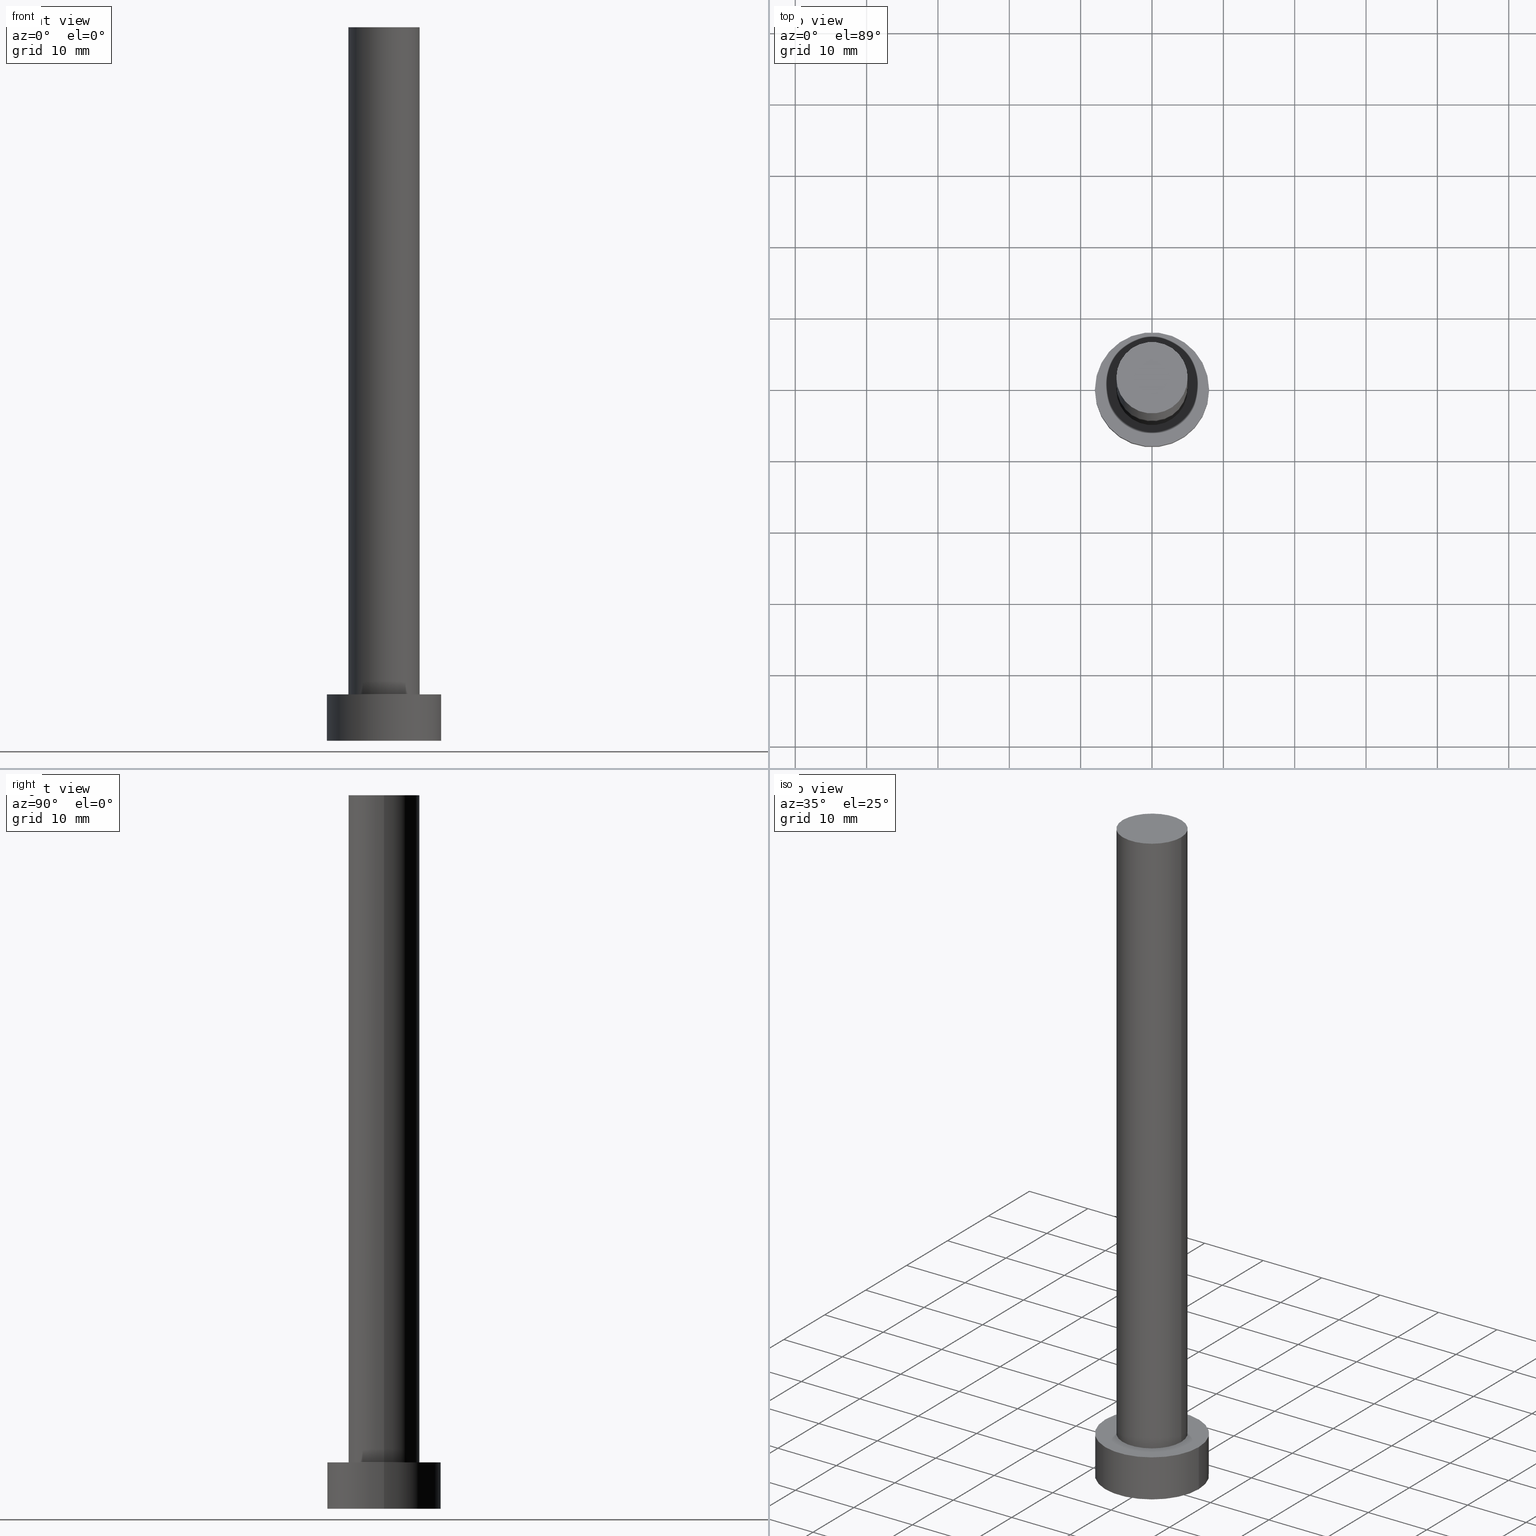
[diagram: canonical four-view strip — front | top / right | iso, engineering-drawing reading convention]
A machine part, canonical four-view strip (front | top / right | iso — engineering-drawing reading convention). The complete STEP part file that produces these views, byte-faithful:
ISO-10303-21;
HEADER;
FILE_DESCRIPTION (( 'STEP AP203' ),
    '1' );
FILE_NAME ('3461.STEP',
    '2023-02-13T13:10:58',
    ( '' ),
    ( '' ),
    'SwSTEP 2.0',
    'SolidWorks 2019',
    '' );
FILE_SCHEMA (( 'CONFIG_CONTROL_DESIGN' ));
ENDSEC;

DATA;
#1 = CYLINDRICAL_SURFACE ( 'NONE', #130, 5.000000000000000888 ) ;
#2 = ORIENTED_EDGE ( 'NONE', *, *, #161, .F. ) ;
#3 = ORIENTED_EDGE ( 'NONE', *, *, #57, .T. ) ;
#4 = DATE_TIME_ROLE ( 'creation_date' ) ;
#5 = EDGE_CURVE ( 'NONE', #228, #62, #239, .T. ) ;
#6 = CC_DESIGN_APPROVAL ( #127, ( #235 ) ) ;
#7 = CARTESIAN_POINT ( 'NONE',  ( 0.000000000000000000, 0.000000000000000000, 0.000000000000000000 ) ) ;
#8 = FACE_OUTER_BOUND ( 'NONE', #205, .T. ) ;
#9 = EDGE_LOOP ( 'NONE', ( #76, #58 ) ) ;
#10 = DIRECTION ( 'NONE',  ( 0.000000000000000000, 0.000000000000000000, 1.000000000000000000 ) ) ;
#11 = EDGE_LOOP ( 'NONE', ( #83, #191, #176, #233 ) ) ;
#12 = CC_DESIGN_SECURITY_CLASSIFICATION ( #235, ( #216 ) ) ;
#13 = APPROVAL_ROLE ( '' ) ;
#14 = APPROVAL ( #43, 'NEUR�EN�' ) ;
#15 = AXIS2_PLACEMENT_3D ( 'NONE', #16, #252, #188 ) ;
#16 = CARTESIAN_POINT ( 'NONE',  ( 0.000000000000000000, 0.000000000000000000, 6.500000000000000000 ) ) ;
#17 = AXIS2_PLACEMENT_3D ( 'NONE', #220, #198, #129 ) ;
#18 = DIRECTION ( 'NONE',  ( 1.000000000000000000, 0.000000000000000000, 0.000000000000000000 ) ) ;
#19 = ADVANCED_FACE ( 'NONE', ( #133 ), #136, .T. ) ;
#20 = CALENDAR_DATE ( 2023, 13, 2 ) ;
#21 = AXIS2_PLACEMENT_3D ( 'NONE', #107, #26, #194 ) ;
#22 = DIRECTION ( 'NONE',  ( 0.000000000000000000, 0.000000000000000000, 1.000000000000000000 ) ) ;
#23 = AXIS2_PLACEMENT_3D ( 'NONE', #71, #250, #202 ) ;
#24 = COORDINATED_UNIVERSAL_TIME_OFFSET ( 1, 0, .AHEAD. ) ;
#25 = ORIENTED_EDGE ( 'NONE', *, *, #105, .F. ) ;
#26 = DIRECTION ( 'NONE',  ( 0.000000000000000000, 0.000000000000000000, 1.000000000000000000 ) ) ;
#27 = CARTESIAN_POINT ( 'NONE',  ( -5.000000000000000888, 0.000000000000000000, 100.0000000000000000 ) ) ;
#28 = ORIENTED_EDGE ( 'NONE', *, *, #253, .T. ) ;
#29 = VECTOR ( 'NONE', #99, 1000.000000000000000 ) ;
#30 = PERSON_AND_ORGANIZATION ( #142, #116 ) ;
#31 = LOCAL_TIME ( 14, 10, 58.00000000000000000, #92 ) ;
#32 = ORIENTED_EDGE ( 'NONE', *, *, #236, .T. ) ;
#33 = CARTESIAN_POINT ( 'NONE',  ( 0.000000000000000000, 0.000000000000000000, 100.0000000000000000 ) ) ;
#34 = CARTESIAN_POINT ( 'NONE',  ( 0.000000000000000000, 0.000000000000000000, 6.500000000000000000 ) ) ;
#35 = EDGE_CURVE ( 'NONE', #122, #62, #171, .T. ) ;
#36 = DIRECTION ( 'NONE',  ( -0.000000000000000000, -0.000000000000000000, -1.000000000000000000 ) ) ;
#37 = MANIFOLD_SOLID_BREP ( 'P�idat vysunut�m3', #96 ) ;
#38 =( LENGTH_UNIT ( ) NAMED_UNIT ( * ) SI_UNIT ( .MILLI., .METRE. ) );
#39 = AXIS2_PLACEMENT_3D ( 'NONE', #33, #52, #196 ) ;
#40 = VERTEX_POINT ( 'NONE', #187 ) ;
#41 = DIRECTION ( 'NONE',  ( 0.000000000000000000, 0.000000000000000000, 1.000000000000000000 ) ) ;
#42 = ADVANCED_FACE ( 'NONE', ( #77 ), #1, .T. ) ;
#43 = APPROVAL_STATUS ( 'not_yet_approved' ) ;
#44 = CARTESIAN_POINT ( 'NONE',  ( 0.000000000000000000, 0.000000000000000000, 100.0000000000000000 ) ) ;
#45 = EDGE_LOOP ( 'NONE', ( #213, #167, #32, #2 ) ) ;
#46 = CARTESIAN_POINT ( 'NONE',  ( -8.000000000000000000, 0.000000000000000000, 6.500000000000000000 ) ) ;
#47 = ADVANCED_FACE ( 'NONE', ( #160 ), #63, .T. ) ;
#48 = APPROVAL_ROLE ( '' ) ;
#49 = ORIENTED_EDGE ( 'NONE', *, *, #66, .T. ) ;
#50 = LOCAL_TIME ( 14, 10, 58.00000000000000000, #190 ) ;
#51 = DIRECTION ( 'NONE',  ( 0.000000000000000000, 0.000000000000000000, 1.000000000000000000 ) ) ;
#52 = DIRECTION ( 'NONE',  ( -0.000000000000000000, -0.000000000000000000, -1.000000000000000000 ) ) ;
#53 = CARTESIAN_POINT ( 'NONE',  ( 0.000000000000000000, 0.000000000000000000, 100.0000000000000000 ) ) ;
#54 = PERSON_AND_ORGANIZATION_ROLE ( 'creator' ) ;
#55 = APPLICATION_PROTOCOL_DEFINITION ( 'international standard', 'config_control_design', 1994, #93 ) ;
#56 = COORDINATED_UNIVERSAL_TIME_OFFSET ( 1, 0, .AHEAD. ) ;
#57 = EDGE_CURVE ( 'NONE', #67, #178, #237, .T. ) ;
#58 = ORIENTED_EDGE ( 'NONE', *, *, #236, .F. ) ;
#59 = APPROVAL_PERSON_ORGANIZATION ( #174, #14, #48 ) ;
#60 = ORIENTED_EDGE ( 'NONE', *, *, #78, .F. ) ;
#61 = CARTESIAN_POINT ( 'NONE',  ( 8.000000000000000000, 9.797174393178823685E-16, 6.500000000000000000 ) ) ;
#62 = VERTEX_POINT ( 'NONE', #75 ) ;
#63 = CYLINDRICAL_SURFACE ( 'NONE', #15, 8.000000000000000000 ) ;
#64 = CC_DESIGN_APPROVAL ( #14, ( #110 ) ) ;
#65 = DIRECTION ( 'NONE',  ( 0.000000000000000000, 0.000000000000000000, 1.000000000000000000 ) ) ;
#66 = EDGE_CURVE ( 'NONE', #155, #122, #166, .T. ) ;
#67 = VERTEX_POINT ( 'NONE', #118 ) ;
#68 = PLANE ( 'NONE',  #17 ) ;
#69 = FACE_OUTER_BOUND ( 'NONE', #234, .T. ) ;
#70 = PLANE ( 'NONE',  #141 ) ;
#71 = CARTESIAN_POINT ( 'NONE',  ( 0.000000000000000000, 0.000000000000000000, 6.500000000000000000 ) ) ;
#72 = DATE_AND_TIME ( #223, #254 ) ;
#73 = AXIS2_PLACEMENT_3D ( 'NONE', #145, #207, #18 ) ;
#74 = APPROVAL_PERSON_ORGANIZATION ( #114, #97, #13 ) ;
#75 = CARTESIAN_POINT ( 'NONE',  ( 5.000000000000000888, 6.123233995736767268E-16, 6.500000000000000000 ) ) ;
#76 = ORIENTED_EDGE ( 'NONE', *, *, #5, .F. ) ;
#77 = FACE_OUTER_BOUND ( 'NONE', #208, .T. ) ;
#78 = EDGE_CURVE ( 'NONE', #67, #40, #182, .T. ) ;
#79 = CARTESIAN_POINT ( 'NONE',  ( 0.000000000000000000, 0.000000000000000000, 100.0000000000000000 ) ) ;
#80 = ORIENTED_EDGE ( 'NONE', *, *, #124, .F. ) ;
#81 = DIRECTION ( 'NONE',  ( 1.000000000000000000, 0.000000000000000000, 0.000000000000000000 ) ) ;
#82 = PRODUCT ( '3461', '3461', '', ( #119 ) ) ;
#83 = ORIENTED_EDGE ( 'NONE', *, *, #253, .F. ) ;
#84 = AXIS2_PLACEMENT_3D ( 'NONE', #53, #87, #245 ) ;
#85 = DIRECTION ( 'NONE',  ( -0.000000000000000000, -0.000000000000000000, -1.000000000000000000 ) ) ;
#86 = DIRECTION ( 'NONE',  ( 1.000000000000000000, 0.000000000000000000, 0.000000000000000000 ) ) ;
#87 = DIRECTION ( 'NONE',  ( 0.000000000000000000, 0.000000000000000000, 1.000000000000000000 ) ) ;
#88 = PERSON_AND_ORGANIZATION ( #142, #116 ) ;
#89 = DIRECTION ( 'NONE',  ( -1.000000000000000000, 0.000000000000000000, 0.000000000000000000 ) ) ;
#90 = ORIENTED_EDGE ( 'NONE', *, *, #5, .T. ) ;
#91 = CARTESIAN_POINT ( 'NONE',  ( 5.000000000000000888, 6.123233995736767268E-16, 100.0000000000000000 ) ) ;
#92 = COORDINATED_UNIVERSAL_TIME_OFFSET ( 1, 0, .AHEAD. ) ;
#93 = APPLICATION_CONTEXT ( 'configuration controlled 3d designs of mechanical parts and assemblies' ) ;
#94 = CIRCLE ( 'NONE', #240, 5.000000000000000888 ) ;
#95 = DIRECTION ( 'NONE',  ( 0.000000000000000000, 0.000000000000000000, 1.000000000000000000 ) ) ;
#96 = CLOSED_SHELL ( 'NONE', ( #151, #47, #19, #243, #152, #42, #232 ) ) ;
#97 = APPROVAL ( #111, 'NEUR�EN�' ) ;
#98 = APPROVAL_DATE_TIME ( #139, #14 ) ;
#99 = DIRECTION ( 'NONE',  ( -0.000000000000000000, -0.000000000000000000, -1.000000000000000000 ) ) ;
#100 = ORIENTED_EDGE ( 'NONE', *, *, #180, .F. ) ;
#101 = CALENDAR_DATE ( 2023, 13, 2 ) ;
#102 = UNCERTAINTY_MEASURE_WITH_UNIT (LENGTH_MEASURE( 1.000000000000000082E-05 ), #38, 'distance_accuracy_value', 'NONE');
#103 = FACE_BOUND ( 'NONE', #9, .T. ) ;
#104 = AXIS2_PLACEMENT_3D ( 'NONE', #120, #22, #81 ) ;
#105 = EDGE_CURVE ( 'NONE', #168, #178, #211, .T. ) ;
#106 = DATE_AND_TIME ( #173, #31 ) ;
#107 = CARTESIAN_POINT ( 'NONE',  ( 0.000000000000000000, 0.000000000000000000, 6.500000000000000000 ) ) ;
#108 = LINE ( 'NONE', #27, #149 ) ;
#109 = SHAPE_DEFINITION_REPRESENTATION ( #148, #225 ) ;
#110 = PRODUCT_DEFINITION ( 'NEZN�M�', '', #216, #123 ) ;
#111 = APPROVAL_STATUS ( 'not_yet_approved' ) ;
#112 = ORIENTED_EDGE ( 'NONE', *, *, #175, .T. ) ;
#113 = APPROVAL_DATE_TIME ( #106, #127 ) ;
#114 = PERSON_AND_ORGANIZATION ( #142, #116 ) ;
#115 = DIRECTION ( 'NONE',  ( -0.000000000000000000, -0.000000000000000000, -1.000000000000000000 ) ) ;
#116 = ORGANIZATION ( 'NEUR�EN�', 'NEUR�EN�', '' ) ;
#117 = CARTESIAN_POINT ( 'NONE',  ( 0.000000000000000000, 0.000000000000000000, 0.000000000000000000 ) ) ;
#118 = CARTESIAN_POINT ( 'NONE',  ( -8.000000000000000000, 0.000000000000000000, 6.500000000000000000 ) ) ;
#119 = MECHANICAL_CONTEXT ( 'NONE', #93, 'mechanical' ) ;
#120 = CARTESIAN_POINT ( 'NONE',  ( 0.000000000000000000, 0.000000000000000000, 0.000000000000000000 ) ) ;
#121 = DIRECTION ( 'NONE',  ( 1.000000000000000000, 0.000000000000000000, 0.000000000000000000 ) ) ;
#122 = VERTEX_POINT ( 'NONE', #164 ) ;
#123 = DESIGN_CONTEXT ( 'detailed design', #154, 'design' ) ;
#124 = EDGE_CURVE ( 'NONE', #40, #168, #231, .T. ) ;
#125 = LOCAL_TIME ( 14, 10, 58.00000000000000000, #24 ) ;
#126 = DIRECTION ( 'NONE',  ( 1.000000000000000000, 0.000000000000000000, 0.000000000000000000 ) ) ;
#127 = APPROVAL ( #204, 'NEUR�EN�' ) ;
#128 = APPROVAL_DATE_TIME ( #184, #97 ) ;
#129 = DIRECTION ( 'NONE',  ( 1.000000000000000000, 0.000000000000000000, -0.000000000000000000 ) ) ;
#130 = AXIS2_PLACEMENT_3D ( 'NONE', #44, #115, #238 ) ;
#131 = EDGE_LOOP ( 'NONE', ( #150, #28 ) ) ;
#132 = PLANE ( 'NONE',  #203 ) ;
#133 = FACE_OUTER_BOUND ( 'NONE', #215, .T. ) ;
#134 = CALENDAR_DATE ( 2023, 13, 2 ) ;
#135 = CC_DESIGN_PERSON_AND_ORGANIZATION_ASSIGNMENT ( #247, #158, ( #216 ) ) ;
#136 = CYLINDRICAL_SURFACE ( 'NONE', #241, 8.000000000000000000 ) ;
#137 = VECTOR ( 'NONE', #192, 1000.000000000000000 ) ;
#138 = PERSON_AND_ORGANIZATION ( #142, #116 ) ;
#139 = DATE_AND_TIME ( #20, #50 ) ;
#140 = DIRECTION ( 'NONE',  ( -0.000000000000000000, -0.000000000000000000, -1.000000000000000000 ) ) ;
#141 = AXIS2_PLACEMENT_3D ( 'NONE', #224, #10, #157 ) ;
#142 = PERSON ( 'NEUR�EN�', 'NEUR�EN�', 'NEUR�EN�', ('NEUR�EN�'), ('NEUR�EN�'), ('NEUR�EN�') ) ;
#143 = DIRECTION ( 'NONE',  ( 1.000000000000000000, 0.000000000000000000, 0.000000000000000000 ) ) ;
#144 = PERSON_AND_ORGANIZATION ( #142, #116 ) ;
#145 = CARTESIAN_POINT ( 'NONE',  ( 0.000000000000000000, 0.000000000000000000, 6.500000000000000000 ) ) ;
#146 = PERSON_AND_ORGANIZATION_ROLE ( 'design_owner' ) ;
#147 = VECTOR ( 'NONE', #140, 1000.000000000000000 ) ;
#148 = PRODUCT_DEFINITION_SHAPE ( 'NONE', 'NONE',  #110 ) ;
#149 = VECTOR ( 'NONE', #85, 1000.000000000000000 ) ;
#150 = ORIENTED_EDGE ( 'NONE', *, *, #78, .T. ) ;
#151 = ADVANCED_FACE ( 'NONE', ( #227 ), #222, .T. ) ;
#152 = ADVANCED_FACE ( 'NONE', ( #8 ), #70, .F. ) ;
#153 = CIRCLE ( 'NONE', #84, 5.000000000000000888 ) ;
#154 = APPLICATION_CONTEXT ( 'configuration controlled 3d designs of mechanical parts and assemblies' ) ;
#155 = VERTEX_POINT ( 'NONE', #156 ) ;
#156 = CARTESIAN_POINT ( 'NONE',  ( -5.000000000000000888, 0.000000000000000000, 100.0000000000000000 ) ) ;
#157 = DIRECTION ( 'NONE',  ( 1.000000000000000000, 0.000000000000000000, -0.000000000000000000 ) ) ;
#158 = PERSON_AND_ORGANIZATION_ROLE ( 'design_supplier' ) ;
#159 = COORDINATED_UNIVERSAL_TIME_OFFSET ( 1, 0, .AHEAD. ) ;
#160 = FACE_OUTER_BOUND ( 'NONE', #11, .T. ) ;
#161 = EDGE_CURVE ( 'NONE', #155, #228, #108, .T. ) ;
#162 = ORIENTED_EDGE ( 'NONE', *, *, #35, .F. ) ;
#163 = PERSON_AND_ORGANIZATION ( #142, #116 ) ;
#164 = CARTESIAN_POINT ( 'NONE',  ( 5.000000000000000888, 6.123233995736767268E-16, 100.0000000000000000 ) ) ;
#165 = CC_DESIGN_DATE_AND_TIME_ASSIGNMENT ( #179, #4, ( #110 ) ) ;
#166 = CIRCLE ( 'NONE', #229, 5.000000000000000888 ) ;
#167 = ORIENTED_EDGE ( 'NONE', *, *, #35, .T. ) ;
#168 = VERTEX_POINT ( 'NONE', #185 ) ;
#169 = CARTESIAN_POINT ( 'NONE',  ( -8.000000000000000000, 0.000000000000000000, 0.000000000000000000 ) ) ;
#170 = AXIS2_PLACEMENT_3D ( 'NONE', #117, #95, #121 ) ;
#171 = LINE ( 'NONE', #91, #137 ) ;
#172 = PERSON_AND_ORGANIZATION_ROLE ( 'classification_officer' ) ;
#173 = CALENDAR_DATE ( 2023, 13, 2 ) ;
#174 = PERSON_AND_ORGANIZATION ( #142, #116 ) ;
#175 = EDGE_CURVE ( 'NONE', #122, #155, #153, .T. ) ;
#176 = ORIENTED_EDGE ( 'NONE', *, *, #105, .T. ) ;
#177 = CIRCLE ( 'NONE', #242, 8.000000000000000000 ) ;
#178 = VERTEX_POINT ( 'NONE', #169 ) ;
#179 = DATE_AND_TIME ( #101, #125 ) ;
#180 = EDGE_CURVE ( 'NONE', #178, #168, #177, .T. ) ;
#181 = FACE_OUTER_BOUND ( 'NONE', #131, .T. ) ;
#182 = CIRCLE ( 'NONE', #73, 8.000000000000000000 ) ;
#183 = CC_DESIGN_APPROVAL ( #97, ( #216 ) ) ;
#184 = DATE_AND_TIME ( #134, #193 ) ;
#185 = CARTESIAN_POINT ( 'NONE',  ( 8.000000000000000000, 9.797174393178823685E-16, 0.000000000000000000 ) ) ;
#186 =( NAMED_UNIT ( * ) SI_UNIT ( $, .STERADIAN. ) SOLID_ANGLE_UNIT ( ) );
#187 = CARTESIAN_POINT ( 'NONE',  ( 8.000000000000000000, 9.797174393178823685E-16, 6.500000000000000000 ) ) ;
#188 = DIRECTION ( 'NONE',  ( -1.000000000000000000, 0.000000000000000000, 0.000000000000000000 ) ) ;
#189 = ORIENTED_EDGE ( 'NONE', *, *, #161, .T. ) ;
#190 = COORDINATED_UNIVERSAL_TIME_OFFSET ( 1, 0, .AHEAD. ) ;
#191 = ORIENTED_EDGE ( 'NONE', *, *, #124, .T. ) ;
#192 = DIRECTION ( 'NONE',  ( -0.000000000000000000, -0.000000000000000000, -1.000000000000000000 ) ) ;
#193 = LOCAL_TIME ( 14, 10, 58.00000000000000000, #159 ) ;
#194 = DIRECTION ( 'NONE',  ( 1.000000000000000000, 0.000000000000000000, 0.000000000000000000 ) ) ;
#195 = DIRECTION ( 'NONE',  ( 0.000000000000000000, 0.000000000000000000, 1.000000000000000000 ) ) ;
#196 = DIRECTION ( 'NONE',  ( -1.000000000000000000, 0.000000000000000000, 0.000000000000000000 ) ) ;
#197 = CC_DESIGN_PERSON_AND_ORGANIZATION_ASSIGNMENT ( #163, #210, ( #110 ) ) ;
#198 = DIRECTION ( 'NONE',  ( 0.000000000000000000, 0.000000000000000000, 1.000000000000000000 ) ) ;
#199 =( GEOMETRIC_REPRESENTATION_CONTEXT ( 3 ) GLOBAL_UNCERTAINTY_ASSIGNED_CONTEXT ( ( #102 ) ) GLOBAL_UNIT_ASSIGNED_CONTEXT ( ( #38, #244, #186 ) ) REPRESENTATION_CONTEXT ( 'NONE', 'WORKASPACE' ) );
#200 = CARTESIAN_POINT ( 'NONE',  ( 0.000000000000000000, 0.000000000000000000, 6.500000000000000000 ) ) ;
#201 = APPROVAL_ROLE ( '' ) ;
#202 = DIRECTION ( 'NONE',  ( 1.000000000000000000, 0.000000000000000000, 0.000000000000000000 ) ) ;
#203 = AXIS2_PLACEMENT_3D ( 'NONE', #34, #41, #246 ) ;
#204 = APPROVAL_STATUS ( 'not_yet_approved' ) ;
#205 = EDGE_LOOP ( 'NONE', ( #100, #25 ) ) ;
#206 = APPLICATION_PROTOCOL_DEFINITION ( 'international standard', 'config_control_design', 1994, #154 ) ;
#207 = DIRECTION ( 'NONE',  ( 0.000000000000000000, 0.000000000000000000, 1.000000000000000000 ) ) ;
#208 = EDGE_LOOP ( 'NONE', ( #162, #251, #189, #90 ) ) ;
#209 = PRODUCT_RELATED_PRODUCT_CATEGORY ( 'detail', '', ( #82 ) ) ;
#210 = PERSON_AND_ORGANIZATION_ROLE ( 'creator' ) ;
#211 = CIRCLE ( 'NONE', #104, 8.000000000000000000 ) ;
#212 = APPROVAL_PERSON_ORGANIZATION ( #30, #127, #201 ) ;
#213 = ORIENTED_EDGE ( 'NONE', *, *, #175, .F. ) ;
#214 = ORIENTED_EDGE ( 'NONE', *, *, #180, .T. ) ;
#215 = EDGE_LOOP ( 'NONE', ( #80, #60, #3, #214 ) ) ;
#216 = PRODUCT_DEFINITION_FORMATION_WITH_SPECIFIED_SOURCE ( 'LIBOVOLN�', '', #82, .NOT_KNOWN. ) ;
#217 = CARTESIAN_POINT ( 'NONE',  ( 0.000000000000000000, 0.000000000000000000, 6.500000000000000000 ) ) ;
#218 = CARTESIAN_POINT ( 'NONE',  ( -5.000000000000000888, 0.000000000000000000, 6.500000000000000000 ) ) ;
#219 = CC_DESIGN_PERSON_AND_ORGANIZATION_ASSIGNMENT ( #88, #172, ( #235 ) ) ;
#220 = CARTESIAN_POINT ( 'NONE',  ( 0.000000000000000000, 0.000000000000000000, 100.0000000000000000 ) ) ;
#221 = CIRCLE ( 'NONE', #23, 8.000000000000000000 ) ;
#222 = CYLINDRICAL_SURFACE ( 'NONE', #39, 5.000000000000000888 ) ;
#223 = CALENDAR_DATE ( 2023, 13, 2 ) ;
#224 = CARTESIAN_POINT ( 'NONE',  ( 0.000000000000000000, 0.000000000000000000, 0.000000000000000000 ) ) ;
#225 = ADVANCED_BREP_SHAPE_REPRESENTATION ( '3461', ( #37, #170 ), #199 ) ;
#226 = CC_DESIGN_PERSON_AND_ORGANIZATION_ASSIGNMENT ( #138, #54, ( #216 ) ) ;
#227 = FACE_OUTER_BOUND ( 'NONE', #45, .T. ) ;
#228 = VERTEX_POINT ( 'NONE', #218 ) ;
#229 = AXIS2_PLACEMENT_3D ( 'NONE', #79, #65, #143 ) ;
#230 = DATE_TIME_ROLE ( 'classification_date' ) ;
#231 = LINE ( 'NONE', #61, #147 ) ;
#232 = ADVANCED_FACE ( 'NONE', ( #69 ), #68, .T. ) ;
#233 = ORIENTED_EDGE ( 'NONE', *, *, #57, .F. ) ;
#234 = EDGE_LOOP ( 'NONE', ( #49, #112 ) ) ;
#235 = SECURITY_CLASSIFICATION ( '', '', #248 ) ;
#236 = EDGE_CURVE ( 'NONE', #62, #228, #94, .T. ) ;
#237 = LINE ( 'NONE', #46, #29 ) ;
#238 = DIRECTION ( 'NONE',  ( -1.000000000000000000, 0.000000000000000000, 0.000000000000000000 ) ) ;
#239 = CIRCLE ( 'NONE', #21, 5.000000000000000888 ) ;
#240 = AXIS2_PLACEMENT_3D ( 'NONE', #217, #51, #126 ) ;
#241 = AXIS2_PLACEMENT_3D ( 'NONE', #200, #36, #89 ) ;
#242 = AXIS2_PLACEMENT_3D ( 'NONE', #7, #195, #86 ) ;
#243 = ADVANCED_FACE ( 'NONE', ( #103, #181 ), #132, .T. ) ;
#244 =( NAMED_UNIT ( * ) PLANE_ANGLE_UNIT ( ) SI_UNIT ( $, .RADIAN. ) );
#245 = DIRECTION ( 'NONE',  ( 1.000000000000000000, 0.000000000000000000, 0.000000000000000000 ) ) ;
#246 = DIRECTION ( 'NONE',  ( 1.000000000000000000, 0.000000000000000000, -0.000000000000000000 ) ) ;
#247 = PERSON_AND_ORGANIZATION ( #142, #116 ) ;
#248 = SECURITY_CLASSIFICATION_LEVEL ( 'unclassified' ) ;
#249 = CC_DESIGN_DATE_AND_TIME_ASSIGNMENT ( #72, #230, ( #235 ) ) ;
#250 = DIRECTION ( 'NONE',  ( 0.000000000000000000, 0.000000000000000000, 1.000000000000000000 ) ) ;
#251 = ORIENTED_EDGE ( 'NONE', *, *, #66, .F. ) ;
#252 = DIRECTION ( 'NONE',  ( -0.000000000000000000, -0.000000000000000000, -1.000000000000000000 ) ) ;
#253 = EDGE_CURVE ( 'NONE', #40, #67, #221, .T. ) ;
#254 = LOCAL_TIME ( 14, 10, 58.00000000000000000, #56 ) ;
#255 = CC_DESIGN_PERSON_AND_ORGANIZATION_ASSIGNMENT ( #144, #146, ( #82 ) ) ;
ENDSEC;
END-ISO-10303-21;
